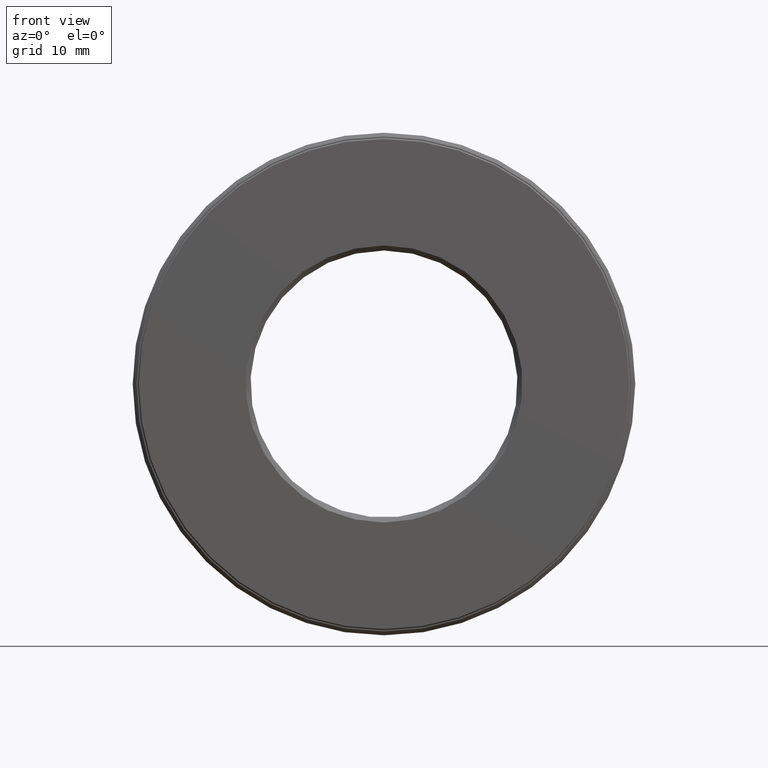
[diagram: clean part render]
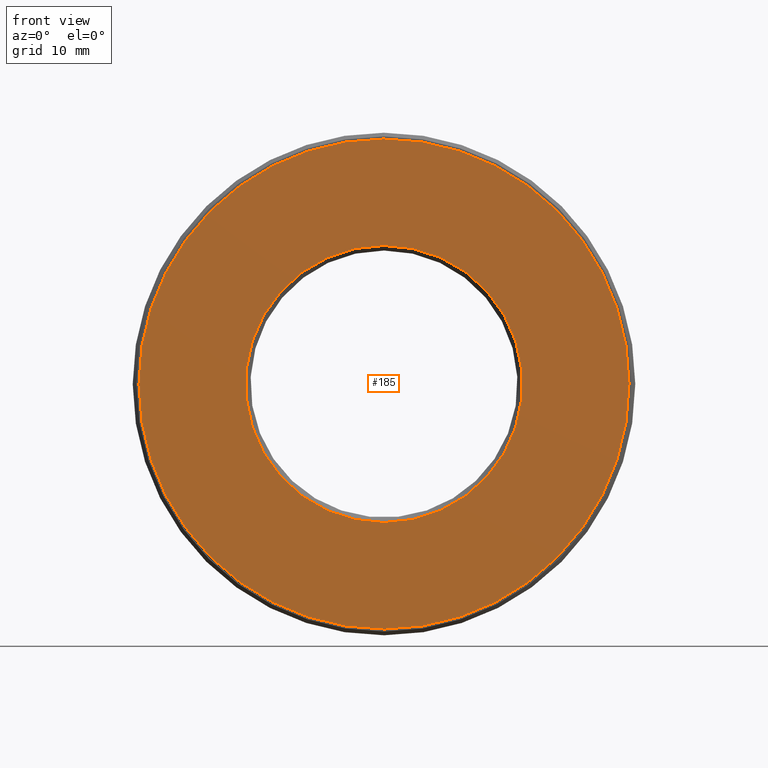
[diagram: same view with one face highlighted and labeled with its STEP entity id]
A machine part, front view. The second image highlights one B-rep face of the part: STEP entity #185.
In plain terms, the highlighted planar face has unit normal (-0, 1, 0).
Its self-contained STEP definition (entity closure, byte-faithful):
#1 = DIRECTION ( 'NONE',  ( -0.0000000000000000000, 1.000000000000000000, 0.0000000000000000000 ) ) ;
#41 = ORIENTED_EDGE ( 'NONE', *, *, #442, .F. ) ;
#90 = DIRECTION ( 'NONE',  ( 0.0000000000000000000, 0.0000000000000000000, 1.000000000000000000 ) ) ;
#105 = DIRECTION ( 'NONE',  ( 0.0000000000000000000, 0.0000000000000000000, 1.000000000000000000 ) ) ;
#139 = EDGE_LOOP ( 'NONE', ( #41 ) ) ;
#140 = DIRECTION ( 'NONE',  ( 0.0000000000000000000, 0.0000000000000000000, 1.000000000000000000 ) ) ;
#142 = DIRECTION ( 'NONE',  ( -0.0000000000000000000, 1.000000000000000000, -0.0000000000000000000 ) ) ;
#149 = FACE_OUTER_BOUND ( 'NONE', #139, .T. ) ;
#178 = EDGE_CURVE ( 'NONE', #572, #572, #606, .T. ) ;
#185 = ADVANCED_FACE ( 'NONE', ( #149, #347 ), #379, .F. ) ;
#269 = ORIENTED_EDGE ( 'NONE', *, *, #178, .T. ) ;
#296 = CARTESIAN_POINT ( 'NONE',  ( 0.0000000000000000000, -6.296055922898107200E-017, 0.0000000000000000000 ) ) ;
#347 = FACE_BOUND ( 'NONE', #374, .T. ) ;
#374 = EDGE_LOOP ( 'NONE', ( #269 ) ) ;
#379 = PLANE ( 'NONE',  #517 ) ;
#389 = VERTEX_POINT ( 'NONE', #493 ) ;
#428 = DIRECTION ( 'NONE',  ( -0.0000000000000000000, 1.000000000000000000, -0.0000000000000000000 ) ) ;
#439 = CIRCLE ( 'NONE', #541, 0.9749999999999999800 ) ;
#442 = EDGE_CURVE ( 'NONE', #389, #389, #439, .T. ) ;
#453 = AXIS2_PLACEMENT_3D ( 'NONE', #600, #142, #90 ) ;
#462 = CARTESIAN_POINT ( 'NONE',  ( -1.216932062983009600E-032, -1.440622965408888800E-017, 0.0000000000000000000 ) ) ;
#493 = CARTESIAN_POINT ( 'NONE',  ( 0.0000000000000000000, -6.296055922898107200E-017, 0.9749999999999999800 ) ) ;
#517 = AXIS2_PLACEMENT_3D ( 'NONE', #462, #1, #140 ) ;
#541 = AXIS2_PLACEMENT_3D ( 'NONE', #296, #428, #105 ) ;
#572 = VERTEX_POINT ( 'NONE', #580 ) ;
#580 = CARTESIAN_POINT ( 'NONE',  ( 0.0000000000000000000, 3.414809992080329000E-017, 0.5512500000000000200 ) ) ;
#600 = CARTESIAN_POINT ( 'NONE',  ( 0.0000000000000000000, 3.414809992080329000E-017, 0.0000000000000000000 ) ) ;
#606 = CIRCLE ( 'NONE', #453, 0.5512500000000000200 ) ;